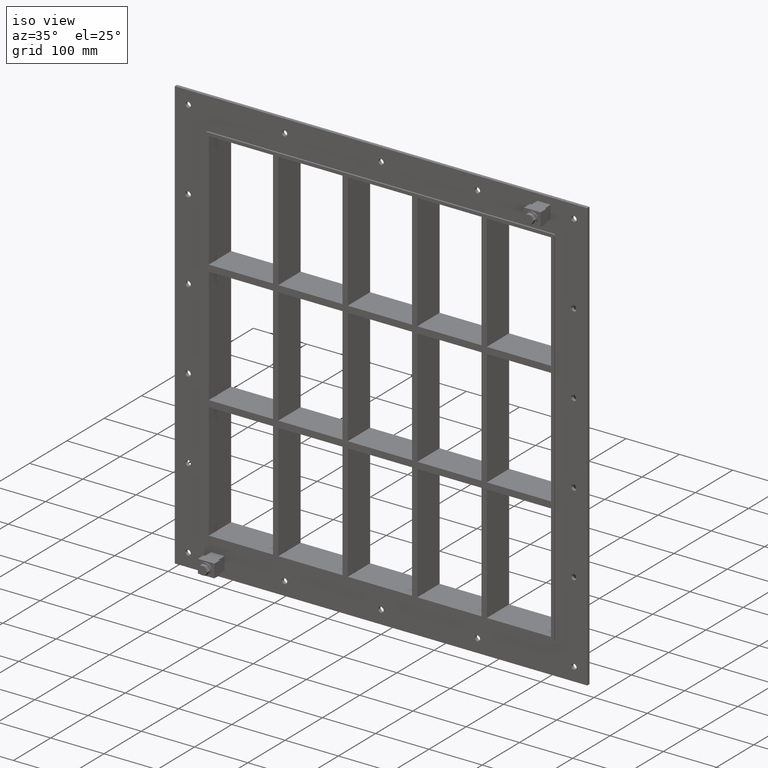
[diagram: clean part render]
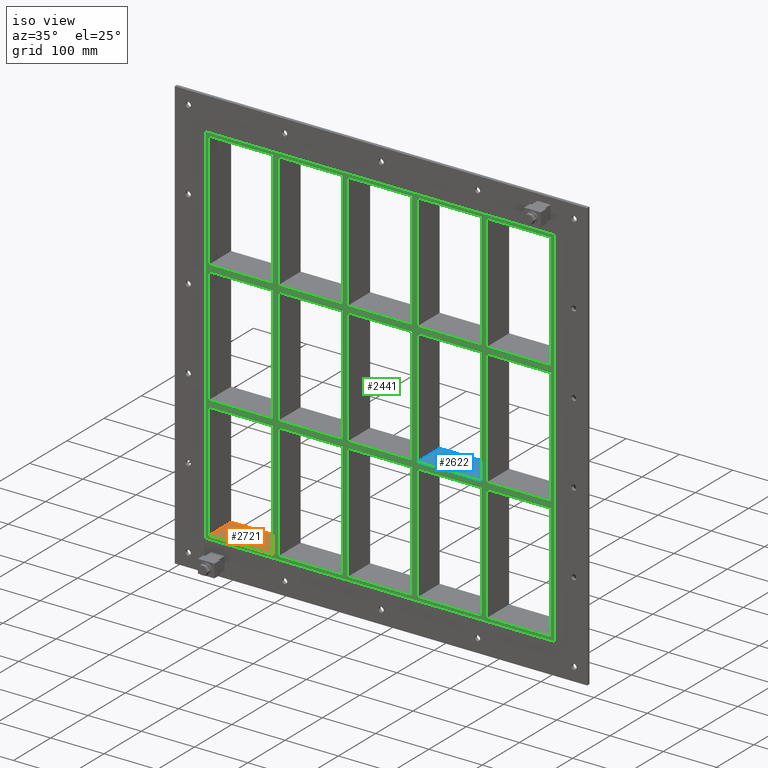
[diagram: same view with three faces highlighted in distinct colors, each labeled with its STEP entity id]
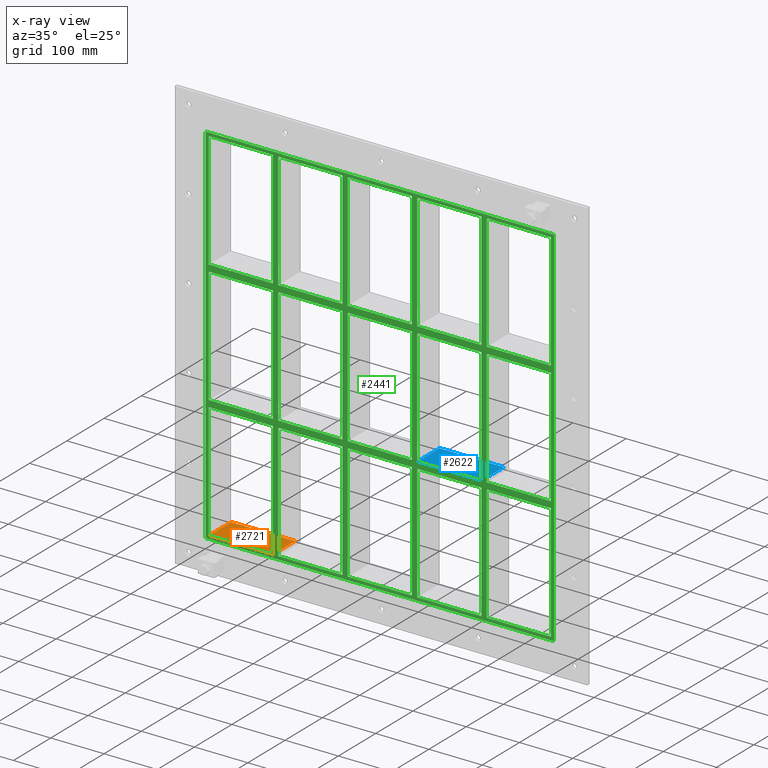
[diagram: x-ray of the same camera — body ghosted, the three highlighted faces saturated]
A machine part, iso view with three faces highlighted in distinct colors.
The next image is the same camera in x-ray (body ghosted, the three faces saturated) — at least one of them is partly hidden behind the body in this view.
Their STEP definitions:

[orange] entity #2721 — the highlighted planar face has unit normal (0, 0, -1).
#1558=CARTESIAN_POINT('',(-321.25,57.0,-339.00000000000006));
#1559=VERTEX_POINT('',#1558);
#1566=CARTESIAN_POINT('',(-200.75000000000017,57.0,-339.00000000000006));
#1567=VERTEX_POINT('',#1566);
#1568=CARTESIAN_POINT('',(-321.25,57.0,-339.00000000000006));
#1569=DIRECTION('',(1.0,0.0,0.0));
#1570=VECTOR('',#1569,120.49999999999983);
#1571=LINE('',#1568,#1570);
#1572=EDGE_CURVE('',#1559,#1567,#1571,.T.);
#2417=CARTESIAN_POINT('',(-200.75000000000017,-3.0,-339.00000000000006));
#2418=VERTEX_POINT('',#2417);
#2425=CARTESIAN_POINT('',(-321.25,-3.0,-339.00000000000006));
#2426=VERTEX_POINT('',#2425);
#2427=CARTESIAN_POINT('',(-200.75000000000017,-3.0,-339.00000000000006));
#2428=DIRECTION('',(-1.0,0.0,0.0));
#2429=VECTOR('',#2428,120.49999999999983);
#2430=LINE('',#2427,#2429);
#2431=EDGE_CURVE('',#2418,#2426,#2430,.T.);
#2683=CARTESIAN_POINT('',(-200.75000000000017,-3.0,-339.00000000000006));
#2684=DIRECTION('',(0.0,1.0,0.0));
#2685=VECTOR('',#2684,60.000000000000007);
#2686=LINE('',#2683,#2685);
#2687=EDGE_CURVE('',#2418,#1567,#2686,.T.);
#2705=CARTESIAN_POINT('',(321.25,0.0,-339.00000000000006));
#2706=DIRECTION('',(0.0,0.0,-1.0));
#2707=DIRECTION('',(-1.0,0.0,0.0));
#2708=AXIS2_PLACEMENT_3D('',#2705,#2706,#2707);
#2709=PLANE('',#2708);
#2710=ORIENTED_EDGE('',*,*,#2687,.T.);
#2711=ORIENTED_EDGE('',*,*,#1572,.F.);
#2712=CARTESIAN_POINT('',(-321.25,-3.0,-339.00000000000006));
#2713=DIRECTION('',(0.0,1.0,0.0));
#2714=VECTOR('',#2713,60.0);
#2715=LINE('',#2712,#2714);
#2716=EDGE_CURVE('',#2426,#1559,#2715,.T.);
#2717=ORIENTED_EDGE('',*,*,#2716,.F.);
#2718=ORIENTED_EDGE('',*,*,#2431,.F.);
#2719=EDGE_LOOP('',(#2710,#2711,#2717,#2718));
#2720=FACE_OUTER_BOUND('',#2719,.T.);
#2721=ADVANCED_FACE('',(#2720),#2709,.F.);

[blue] entity #2622 — the highlighted planar face has unit normal (0, 0, 1).
#1482=CARTESIAN_POINT('',(70.249999999992738,57.0,-108.99999999999977));
#1483=VERTEX_POINT('',#1482);
#1490=CARTESIAN_POINT('',(190.74999999999986,57.0,-108.99999999999977));
#1491=VERTEX_POINT('',#1490);
#1492=CARTESIAN_POINT('',(70.249999999992724,57.0,-108.99999999999977));
#1493=DIRECTION('',(1.0,0.0,0.0));
#1494=VECTOR('',#1493,120.50000000000716);
#1495=LINE('',#1492,#1494);
#1496=EDGE_CURVE('',#1483,#1491,#1495,.T.);
#1745=CARTESIAN_POINT('',(190.74999999999986,-3.0,-108.99999999999977));
#1746=VERTEX_POINT('',#1745);
#1747=CARTESIAN_POINT('',(190.74999999999983,-3.0,-108.99999999999977));
#1748=DIRECTION('',(0.0,1.0,0.0));
#1749=VECTOR('',#1748,60.0);
#1750=LINE('',#1747,#1749);
#1751=EDGE_CURVE('',#1746,#1491,#1750,.T.);
#1909=CARTESIAN_POINT('',(70.249999999992738,-3.0,-108.99999999999977));
#1910=VERTEX_POINT('',#1909);
#1917=CARTESIAN_POINT('',(70.249999999992738,57.0,-108.99999999999977));
#1918=DIRECTION('',(0.0,-1.0,0.0));
#1919=VECTOR('',#1918,60.0);
#1920=LINE('',#1917,#1919);
#1921=EDGE_CURVE('',#1483,#1910,#1920,.T.);
#2248=CARTESIAN_POINT('',(70.249999999992724,-3.0,-108.99999999999977));
#2249=DIRECTION('',(1.0,0.0,0.0));
#2250=VECTOR('',#2249,120.50000000000716);
#2251=LINE('',#2248,#2250);
#2252=EDGE_CURVE('',#1910,#1746,#2251,.T.);
#2611=CARTESIAN_POINT('',(-321.24999999999858,-3.0,-108.99999999999977));
#2612=DIRECTION('',(0.0,0.0,1.0));
#2613=DIRECTION('',(1.0,0.0,0.0));
#2614=AXIS2_PLACEMENT_3D('',#2611,#2612,#2613);
#2615=PLANE('',#2614);
#2616=ORIENTED_EDGE('',*,*,#1751,.T.);
#2617=ORIENTED_EDGE('',*,*,#1496,.F.);
#2618=ORIENTED_EDGE('',*,*,#1921,.T.);
#2619=ORIENTED_EDGE('',*,*,#2252,.T.);
#2620=EDGE_LOOP('',(#2616,#2617,#2618,#2619));
#2621=FACE_OUTER_BOUND('',#2620,.T.);
#2622=ADVANCED_FACE('',(#2621),#2615,.T.);

[green] entity #2441 — the highlighted planar face has unit normal (0, 1, 0).
#577=CARTESIAN_POINT('',(-200.75000000000023,-3.0,108.99999999998855));
#578=VERTEX_POINT('',#577);
#587=CARTESIAN_POINT('',(-321.24999999999858,-3.0,108.9999999999884));
#588=VERTEX_POINT('',#587);
#589=CARTESIAN_POINT('',(-200.75000000000023,-3.0,108.99999999998852));
#590=DIRECTION('',(-1.0,0.0,0.0));
#591=VECTOR('',#590,120.49999999999841);
#592=LINE('',#589,#591);
#593=EDGE_CURVE('',#578,#588,#592,.T.);
#617=CARTESIAN_POINT('',(-70.25000000000027,-3.0,108.99999999998866));
#618=VERTEX_POINT('',#617);
#627=CARTESIAN_POINT('',(-190.75000000000728,-3.0,108.99999999998855));
#628=VERTEX_POINT('',#627);
#629=CARTESIAN_POINT('',(-70.250000000000284,-3.0,108.99999999998865));
#630=DIRECTION('',(-1.0,0.0,0.0));
#631=VECTOR('',#630,120.50000000000699);
#632=LINE('',#629,#631);
#633=EDGE_CURVE('',#618,#628,#632,.T.);
#657=CARTESIAN_POINT('',(60.249999999999773,-3.0,108.99999999998877));
#658=VERTEX_POINT('',#657);
#667=CARTESIAN_POINT('',(-60.250000000007304,-3.0,108.99999999998866));
#668=VERTEX_POINT('',#667);
#669=CARTESIAN_POINT('',(60.249999999999773,-3.0,108.99999999998877));
#670=DIRECTION('',(-1.0,0.0,0.0));
#671=VECTOR('',#670,120.50000000000705);
#672=LINE('',#669,#671);
#673=EDGE_CURVE('',#658,#668,#672,.T.);
#699=CARTESIAN_POINT('',(200.74999999999278,-3.0,108.9999999999889));
#700=VERTEX_POINT('',#699);
#715=CARTESIAN_POINT('',(321.25,-3.0,108.99999999998903));
#716=VERTEX_POINT('',#715);
#723=CARTESIAN_POINT('',(321.25,-3.0,108.99999999998903));
#724=DIRECTION('',(-1.0,0.0,0.0));
#725=VECTOR('',#724,120.50000000000722);
#726=LINE('',#723,#725);
#727=EDGE_CURVE('',#716,#700,#726,.T.);
#737=CARTESIAN_POINT('',(190.74999999999983,-3.0,108.9999999999889));
#738=VERTEX_POINT('',#737);
#747=CARTESIAN_POINT('',(70.249999999992738,-3.0,108.99999999998877));
#748=VERTEX_POINT('',#747);
#749=CARTESIAN_POINT('',(190.74999999999983,-3.0,108.9999999999889));
#750=DIRECTION('',(-1.0,0.0,0.0));
#751=VECTOR('',#750,120.50000000000711);
#752=LINE('',#749,#751);
#753=EDGE_CURVE('',#738,#748,#752,.T.);
#779=CARTESIAN_POINT('',(-200.75000000000023,-3.0,121.00000000000023));
#780=VERTEX_POINT('',#779);
#795=CARTESIAN_POINT('',(-321.24999999999858,-3.0,121.00000000000023));
#796=VERTEX_POINT('',#795);
#803=CARTESIAN_POINT('',(-321.24999999999858,-3.0,121.00000000000023));
#804=DIRECTION('',(1.0,0.0,0.0));
#805=VECTOR('',#804,120.49999999999835);
#806=LINE('',#803,#805);
#807=EDGE_CURVE('',#796,#780,#806,.T.);
#817=CARTESIAN_POINT('',(200.74999999999278,-3.0,121.00000000000023));
#818=VERTEX_POINT('',#817);
#827=CARTESIAN_POINT('',(321.24999999999955,-3.0,121.00000000000023));
#828=VERTEX_POINT('',#827);
#829=CARTESIAN_POINT('',(200.74999999999278,-3.0,121.00000000000023));
#830=DIRECTION('',(1.0,0.0,0.0));
#831=VECTOR('',#830,120.50000000000682);
#832=LINE('',#829,#831);
#833=EDGE_CURVE('',#818,#828,#832,.T.);
#859=CARTESIAN_POINT('',(-70.250000000000227,-3.0,121.00000000000023));
#860=VERTEX_POINT('',#859);
#875=CARTESIAN_POINT('',(-190.75000000000728,-3.0,121.00000000000023));
#876=VERTEX_POINT('',#875);
#883=CARTESIAN_POINT('',(-190.75000000000728,-3.0,121.00000000000023));
#884=DIRECTION('',(1.0,0.0,0.0));
#885=VECTOR('',#884,120.50000000000705);
#886=LINE('',#883,#885);
#887=EDGE_CURVE('',#876,#860,#886,.T.);
#899=CARTESIAN_POINT('',(60.249999999999773,-3.0,121.00000000000023));
#900=VERTEX_POINT('',#899);
#915=CARTESIAN_POINT('',(-60.250000000007269,-3.0,121.00000000000023));
#916=VERTEX_POINT('',#915);
#923=CARTESIAN_POINT('',(-60.250000000007276,-3.0,121.00000000000023));
#924=DIRECTION('',(1.0,0.0,0.0));
#925=VECTOR('',#924,120.50000000000705);
#926=LINE('',#923,#925);
#927=EDGE_CURVE('',#916,#900,#926,.T.);
#939=CARTESIAN_POINT('',(190.74999999999983,-3.0,121.00000000000023));
#940=VERTEX_POINT('',#939);
#955=CARTESIAN_POINT('',(70.249999999992738,-3.0,121.00000000000023));
#956=VERTEX_POINT('',#955);
#963=CARTESIAN_POINT('',(70.249999999992724,-3.0,121.00000000000023));
#964=DIRECTION('',(1.0,0.0,0.0));
#965=VECTOR('',#964,120.50000000000711);
#966=LINE('',#963,#965);
#967=EDGE_CURVE('',#956,#940,#966,.T.);
#986=CARTESIAN_POINT('',(-321.25,-3.0,339.00000000000006));
#987=VERTEX_POINT('',#986);
#994=CARTESIAN_POINT('',(-321.25,-3.0,121.00000000000023));
#995=DIRECTION('',(0.0,0.0,1.0));
#996=VECTOR('',#995,217.99999999999989);
#997=LINE('',#994,#996);
#998=EDGE_CURVE('',#796,#987,#997,.T.);
#1017=CARTESIAN_POINT('',(321.24999999999955,-3.0,-108.99999999999977));
#1018=VERTEX_POINT('',#1017);
#1025=CARTESIAN_POINT('',(321.25,-3.0,108.99999999998902));
#1026=DIRECTION('',(0.0,0.0,-1.0));
#1027=VECTOR('',#1026,217.9999999999888);
#1028=LINE('',#1025,#1027);
#1029=EDGE_CURVE('',#716,#1018,#1028,.T.);
#1040=CARTESIAN_POINT('',(321.25,-3.0,339.00000000000006));
#1041=VERTEX_POINT('',#1040);
#1042=CARTESIAN_POINT('',(321.25,-3.0,339.00000000000006));
#1043=DIRECTION('',(0.0,0.0,-1.0));
#1044=VECTOR('',#1043,217.99999999999983);
#1045=LINE('',#1042,#1044);
#1046=EDGE_CURVE('',#1041,#828,#1045,.T.);
#1071=CARTESIAN_POINT('',(190.74999999999977,-3.0,339.00000000000006));
#1072=VERTEX_POINT('',#1071);
#1073=CARTESIAN_POINT('',(190.7499999999998,-3.0,121.00000000000023));
#1074=DIRECTION('',(0.0,0.0,1.0));
#1075=VECTOR('',#1074,217.99999999999983);
#1076=LINE('',#1073,#1075);
#1077=EDGE_CURVE('',#940,#1072,#1076,.T.);
#1110=CARTESIAN_POINT('',(200.74999999999278,-3.0,339.00000000000006));
#1111=VERTEX_POINT('',#1110);
#1118=CARTESIAN_POINT('',(200.74999999999278,-3.0,339.00000000000006));
#1119=DIRECTION('',(0.0,0.0,-1.0));
#1120=VECTOR('',#1119,217.99999999999983);
#1121=LINE('',#1118,#1120);
#1122=EDGE_CURVE('',#1111,#818,#1121,.T.);
#1133=CARTESIAN_POINT('',(60.249999999999737,-3.0,339.00000000000006));
#1134=VERTEX_POINT('',#1133);
#1135=CARTESIAN_POINT('',(60.249999999999773,-3.0,121.00000000000023));
#1136=DIRECTION('',(0.0,0.0,1.0));
#1137=VECTOR('',#1136,217.99999999999983);
#1138=LINE('',#1135,#1137);
#1139=EDGE_CURVE('',#900,#1134,#1138,.T.);
#1172=CARTESIAN_POINT('',(70.249999999992738,-3.0,339.00000000000006));
#1173=VERTEX_POINT('',#1172);
#1180=CARTESIAN_POINT('',(70.249999999992738,-3.0,339.00000000000006));
#1181=DIRECTION('',(0.0,0.0,-1.0));
#1182=VECTOR('',#1181,217.99999999999983);
#1183=LINE('',#1180,#1182);
#1184=EDGE_CURVE('',#1173,#956,#1183,.T.);
#1195=CARTESIAN_POINT('',(-70.25000000000027,-3.0,339.00000000000006));
#1196=VERTEX_POINT('',#1195);
#1197=CARTESIAN_POINT('',(-70.250000000000242,-3.0,121.00000000000023));
#1198=DIRECTION('',(0.0,0.0,1.0));
#1199=VECTOR('',#1198,217.99999999999983);
#1200=LINE('',#1197,#1199);
#1201=EDGE_CURVE('',#860,#1196,#1200,.T.);
#1234=CARTESIAN_POINT('',(-60.250000000007269,-3.0,339.00000000000006));
#1235=VERTEX_POINT('',#1234);
#1242=CARTESIAN_POINT('',(-60.250000000007269,-3.0,339.00000000000006));
#1243=DIRECTION('',(0.0,0.0,-1.0));
#1244=VECTOR('',#1243,217.99999999999983);
#1245=LINE('',#1242,#1244);
#1246=EDGE_CURVE('',#1235,#916,#1245,.T.);
#1257=CARTESIAN_POINT('',(-200.75000000000028,-3.0,339.00000000000006));
#1258=VERTEX_POINT('',#1257);
#1259=CARTESIAN_POINT('',(-200.75000000000026,-3.0,121.00000000000023));
#1260=DIRECTION('',(0.0,0.0,1.0));
#1261=VECTOR('',#1260,217.99999999999983);
#1262=LINE('',#1259,#1261);
#1263=EDGE_CURVE('',#780,#1258,#1262,.T.);
#1296=CARTESIAN_POINT('',(-200.7500000000002,-3.0,-108.99999999999977));
#1297=VERTEX_POINT('',#1296);
#1304=CARTESIAN_POINT('',(-200.7500000000002,-3.0,-108.99999999999977));
#1305=DIRECTION('',(0.0,0.0,1.0));
#1306=VECTOR('',#1305,217.99999999998835);
#1307=LINE('',#1304,#1306);
#1308=EDGE_CURVE('',#1297,#578,#1307,.T.);
#1327=CARTESIAN_POINT('',(-190.75000000000728,-3.0,339.00000000000006));
#1328=VERTEX_POINT('',#1327);
#1335=CARTESIAN_POINT('',(-190.75000000000728,-3.0,339.00000000000006));
#1336=DIRECTION('',(0.0,0.0,-1.0));
#1337=VECTOR('',#1336,217.99999999999983);
#1338=LINE('',#1335,#1337);
#1339=EDGE_CURVE('',#1328,#876,#1338,.T.);
#1745=CARTESIAN_POINT('',(190.74999999999986,-3.0,-108.99999999999977));
#1746=VERTEX_POINT('',#1745);
#1753=CARTESIAN_POINT('',(190.74999999999986,-3.0,-108.99999999999977));
#1754=DIRECTION('',(0.0,0.0,1.0));
#1755=VECTOR('',#1754,217.99999999998869);
#1756=LINE('',#1753,#1755);
#1757=EDGE_CURVE('',#1746,#738,#1756,.T.);
#1767=CARTESIAN_POINT('',(190.74999999999986,-3.0,-121.0000000000111));
#1768=VERTEX_POINT('',#1767);
#1776=CARTESIAN_POINT('',(190.74999999999989,-3.0,-339.00000000000006));
#1777=VERTEX_POINT('',#1776);
#1784=CARTESIAN_POINT('',(190.74999999999989,-3.0,-339.00000000000006));
#1785=DIRECTION('',(0.0,0.0,1.0));
#1786=VECTOR('',#1785,217.99999999998897);
#1787=LINE('',#1784,#1786);
#1788=EDGE_CURVE('',#1777,#1768,#1787,.T.);
#1799=CARTESIAN_POINT('',(200.74999999999278,-3.0,-108.99999999999977));
#1800=VERTEX_POINT('',#1799);
#1801=CARTESIAN_POINT('',(200.74999999999278,-3.0,108.99999999998892));
#1802=DIRECTION('',(0.0,0.0,-1.0));
#1803=VECTOR('',#1802,217.99999999998869);
#1804=LINE('',#1801,#1803);
#1805=EDGE_CURVE('',#700,#1800,#1804,.T.);
#1822=CARTESIAN_POINT('',(200.74999999999278,-3.0,-121.0000000000111));
#1823=VERTEX_POINT('',#1822);
#1830=CARTESIAN_POINT('',(200.74999999999278,-3.0,-338.99999999998187));
#1831=VERTEX_POINT('',#1830);
#1832=CARTESIAN_POINT('',(200.74999999999278,-3.0,-121.00000000001108));
#1833=DIRECTION('',(0.0,0.0,-1.0));
#1834=VECTOR('',#1833,217.99999999997078);
#1835=LINE('',#1832,#1834);
#1836=EDGE_CURVE('',#1823,#1831,#1835,.T.);
#1855=CARTESIAN_POINT('',(60.249999999999808,-3.0,-108.99999999999977));
#1856=VERTEX_POINT('',#1855);
#1863=CARTESIAN_POINT('',(60.249999999999808,-3.0,-108.99999999999977));
#1864=DIRECTION('',(0.0,0.0,1.0));
#1865=VECTOR('',#1864,217.99999999998852);
#1866=LINE('',#1863,#1865);
#1867=EDGE_CURVE('',#1856,#658,#1866,.T.);
#1877=CARTESIAN_POINT('',(60.249999999999808,-3.0,-121.0000000000112));
#1878=VERTEX_POINT('',#1877);
#1886=CARTESIAN_POINT('',(60.249999999999844,-3.0,-339.00000000000006));
#1887=VERTEX_POINT('',#1886);
#1894=CARTESIAN_POINT('',(60.249999999999844,-3.0,-339.00000000000006));
#1895=DIRECTION('',(0.0,0.0,1.0));
#1896=VECTOR('',#1895,217.99999999998886);
#1897=LINE('',#1894,#1896);
#1898=EDGE_CURVE('',#1887,#1878,#1897,.T.);
#1909=CARTESIAN_POINT('',(70.249999999992738,-3.0,-108.99999999999977));
#1910=VERTEX_POINT('',#1909);
#1911=CARTESIAN_POINT('',(70.249999999992738,-3.0,108.99999999998875));
#1912=DIRECTION('',(0.0,0.0,-1.0));
#1913=VECTOR('',#1912,217.99999999998852);
#1914=LINE('',#1911,#1913);
#1915=EDGE_CURVE('',#748,#1910,#1914,.T.);
#1932=CARTESIAN_POINT('',(70.249999999992738,-3.0,-121.00000000001117));
#1933=VERTEX_POINT('',#1932);
#1940=CARTESIAN_POINT('',(70.249999999992738,-3.0,-338.99999999998187));
#1941=VERTEX_POINT('',#1940);
#1942=CARTESIAN_POINT('',(70.249999999992738,-3.0,-121.0000000000112));
#1943=DIRECTION('',(0.0,0.0,-1.0));
#1944=VECTOR('',#1943,217.99999999997067);
#1945=LINE('',#1942,#1944);
#1946=EDGE_CURVE('',#1933,#1941,#1945,.T.);
#1965=CARTESIAN_POINT('',(-70.250000000000199,-3.0,-108.99999999999977));
#1966=VERTEX_POINT('',#1965);
#1973=CARTESIAN_POINT('',(-70.250000000000213,-3.0,-108.99999999999977));
#1974=DIRECTION('',(0.0,0.0,1.0));
#1975=VECTOR('',#1974,217.99999999998846);
#1976=LINE('',#1973,#1975);
#1977=EDGE_CURVE('',#1966,#618,#1976,.T.);
#1987=CARTESIAN_POINT('',(-70.250000000000199,-3.0,-121.00000000001134));
#1988=VERTEX_POINT('',#1987);
#1996=CARTESIAN_POINT('',(-70.250000000000171,-3.0,-339.00000000000006));
#1997=VERTEX_POINT('',#1996);
#2004=CARTESIAN_POINT('',(-70.250000000000171,-3.0,-339.00000000000006));
#2005=DIRECTION('',(0.0,0.0,1.0));
#2006=VECTOR('',#2005,217.99999999998872);
#2007=LINE('',#2004,#2006);
#2008=EDGE_CURVE('',#1997,#1988,#2007,.T.);
#2019=CARTESIAN_POINT('',(-60.250000000007269,-3.0,-108.99999999999977));
#2020=VERTEX_POINT('',#2019);
#2021=CARTESIAN_POINT('',(-60.250000000007269,-3.0,108.99999999998866));
#2022=DIRECTION('',(0.0,0.0,-1.0));
#2023=VECTOR('',#2022,217.99999999998843);
#2024=LINE('',#2021,#2023);
#2025=EDGE_CURVE('',#668,#2020,#2024,.T.);
#2042=CARTESIAN_POINT('',(-60.250000000007269,-3.0,-121.00000000001131));
#2043=VERTEX_POINT('',#2042);
#2050=CARTESIAN_POINT('',(-60.250000000007269,-3.0,-338.99999999998187));
#2051=VERTEX_POINT('',#2050);
#2052=CARTESIAN_POINT('',(-60.250000000007269,-3.0,-121.00000000001131));
#2053=DIRECTION('',(0.0,0.0,-1.0));
#2054=VECTOR('',#2053,217.99999999997056);
#2055=LINE('',#2052,#2054);
#2056=EDGE_CURVE('',#2043,#2051,#2055,.T.);
#2075=CARTESIAN_POINT('',(-190.75000000000728,-3.0,-338.99999999998187));
#2076=VERTEX_POINT('',#2075);
#2083=CARTESIAN_POINT('',(-70.250000000000171,-3.0,-339.00000000000006));
#2084=DIRECTION('',(-1.0,0.0,0.0));
#2085=VECTOR('',#2084,120.50000000000711);
#2086=LINE('',#2083,#2085);
#2087=EDGE_CURVE('',#1997,#2076,#2086,.T.);
#2100=CARTESIAN_POINT('',(60.249999999999844,-3.0,-339.00000000000006));
#2101=DIRECTION('',(-1.0,0.0,0.0));
#2102=VECTOR('',#2101,120.50000000000712);
#2103=LINE('',#2100,#2102);
#2104=EDGE_CURVE('',#1887,#2051,#2103,.T.);
#2117=CARTESIAN_POINT('',(190.74999999999989,-3.0,-339.00000000000006));
#2118=DIRECTION('',(-1.0,0.0,0.0));
#2119=VECTOR('',#2118,120.50000000000715);
#2120=LINE('',#2117,#2119);
#2121=EDGE_CURVE('',#1777,#1941,#2120,.T.);
#2132=CARTESIAN_POINT('',(321.25,-3.0,-339.00000000000006));
#2133=VERTEX_POINT('',#2132);
#2134=CARTESIAN_POINT('',(321.25,-3.0,-339.00000000000006));
#2135=DIRECTION('',(-1.0,0.0,0.0));
#2136=VECTOR('',#2135,120.50000000000722);
#2137=LINE('',#2134,#2136);
#2138=EDGE_CURVE('',#2133,#1831,#2137,.T.);
#2150=CARTESIAN_POINT('',(0.0,-3.0,5.073418E-014));
#2151=DIRECTION('',(0.0,1.0,0.0));
#2152=DIRECTION('',(0.0,0.0,1.0));
#2153=AXIS2_PLACEMENT_3D('',#2150,#2151,#2152);
#2154=PLANE('',#2153);
#2155=CARTESIAN_POINT('',(-325.25,-3.0,-345.0));
#2156=VERTEX_POINT('',#2155);
#2157=CARTESIAN_POINT('',(-327.25,-3.0,-343.0));
#2158=VERTEX_POINT('',#2157);
#2159=CARTESIAN_POINT('',(-325.25,-3.0,-343.0));
#2160=DIRECTION('',(0.0,1.0,0.0));
#2161=DIRECTION('',(-0.707106781186548,0.0,-0.707106781186548));
#2162=AXIS2_PLACEMENT_3D('',#2159,#2160,#2161);
#2163=CIRCLE('',#2162,2.0);
#2164=EDGE_CURVE('',#2156,#2158,#2163,.T.);
#2165=ORIENTED_EDGE('',*,*,#2164,.F.);
#2166=CARTESIAN_POINT('',(325.25,-3.0,-345.0));
#2167=VERTEX_POINT('',#2166);
#2168=CARTESIAN_POINT('',(-325.25,-3.0,-345.0));
#2169=DIRECTION('',(1.0,0.0,0.0));
#2170=VECTOR('',#2169,650.5);
#2171=LINE('',#2168,#2170);
#2172=EDGE_CURVE('',#2156,#2167,#2171,.T.);
#2173=ORIENTED_EDGE('',*,*,#2172,.T.);
#2174=CARTESIAN_POINT('',(327.25,-3.0,-343.0));
#2175=VERTEX_POINT('',#2174);
#2176=CARTESIAN_POINT('',(325.25,-3.0,-343.0));
#2177=DIRECTION('',(0.0,1.0,0.0));
#2178=DIRECTION('',(0.707106781186548,0.0,-0.707106781186548));
#2179=AXIS2_PLACEMENT_3D('',#2176,#2177,#2178);
#2180=CIRCLE('',#2179,2.0);
#2181=EDGE_CURVE('',#2175,#2167,#2180,.T.);
#2182=ORIENTED_EDGE('',*,*,#2181,.F.);
#2183=CARTESIAN_POINT('',(327.25,-3.0,343.00000000000011));
#2184=VERTEX_POINT('',#2183);
#2185=CARTESIAN_POINT('',(327.25,-3.0,-343.0));
#2186=DIRECTION('',(0.0,0.0,1.0));
#2187=VECTOR('',#2186,686.00000000000011);
#2188=LINE('',#2185,#2187);
#2189=EDGE_CURVE('',#2175,#2184,#2188,.T.);
#2190=ORIENTED_EDGE('',*,*,#2189,.T.);
#2191=CARTESIAN_POINT('',(325.25,-3.0,345.00000000000011));
#2192=VERTEX_POINT('',#2191);
#2193=CARTESIAN_POINT('',(325.25,-3.0,343.00000000000011));
#2194=DIRECTION('',(0.0,1.0,0.0));
#2195=DIRECTION('',(0.707106781186548,0.0,0.707106781186548));
#2196=AXIS2_PLACEMENT_3D('',#2193,#2194,#2195);
#2197=CIRCLE('',#2196,2.0);
#2198=EDGE_CURVE('',#2192,#2184,#2197,.T.);
#2199=ORIENTED_EDGE('',*,*,#2198,.F.);
#2200=CARTESIAN_POINT('',(-325.25,-3.0,345.00000000000011));
#2201=VERTEX_POINT('',#2200);
#2202=CARTESIAN_POINT('',(325.25,-3.0,345.00000000000011));
#2203=DIRECTION('',(-1.0,0.0,0.0));
#2204=VECTOR('',#2203,650.5);
#2205=LINE('',#2202,#2204);
#2206=EDGE_CURVE('',#2192,#2201,#2205,.T.);
#2207=ORIENTED_EDGE('',*,*,#2206,.T.);
#2208=CARTESIAN_POINT('',(-327.25,-3.0,343.00000000000011));
#2209=VERTEX_POINT('',#2208);
#2210=CARTESIAN_POINT('',(-325.25,-3.0,343.00000000000011));
#2211=DIRECTION('',(0.0,1.0,0.0));
#2212=DIRECTION('',(-0.707106781186548,0.0,0.707106781186548));
#2213=AXIS2_PLACEMENT_3D('',#2210,#2211,#2212);
#2214=CIRCLE('',#2213,2.0);
#2215=EDGE_CURVE('',#2209,#2201,#2214,.T.);
#2216=ORIENTED_EDGE('',*,*,#2215,.F.);
#2217=CARTESIAN_POINT('',(-327.25,-3.0,343.00000000000011));
#2218=DIRECTION('',(0.0,0.0,-1.0));
#2219=VECTOR('',#2218,686.00000000000011);
#2220=LINE('',#2217,#2219);
#2221=EDGE_CURVE('',#2209,#2158,#2220,.T.);
#2222=ORIENTED_EDGE('',*,*,#2221,.T.);
#2223=EDGE_LOOP('',(#2165,#2173,#2182,#2190,#2199,#2207,#2216,#2222));
#2224=FACE_OUTER_BOUND('',#2223,.T.);
#2225=ORIENTED_EDGE('',*,*,#998,.T.);
#2226=CARTESIAN_POINT('',(-321.25,-3.0,339.00000000000006));
#2227=DIRECTION('',(1.0,0.0,0.0));
#2228=VECTOR('',#2227,120.49999999999972);
#2229=LINE('',#2226,#2228);
#2230=EDGE_CURVE('',#987,#1258,#2229,.T.);
#2231=ORIENTED_EDGE('',*,*,#2230,.T.);
#2232=ORIENTED_EDGE('',*,*,#1263,.F.);
#2233=ORIENTED_EDGE('',*,*,#807,.F.);
#2234=EDGE_LOOP('',(#2225,#2231,#2232,#2233));
#2235=FACE_BOUND('',#2234,.T.);
#2236=ORIENTED_EDGE('',*,*,#1029,.T.);
#2237=CARTESIAN_POINT('',(200.74999999999278,-3.0,-108.99999999999977));
#2238=DIRECTION('',(1.0,0.0,0.0));
#2239=VECTOR('',#2238,120.50000000000682);
#2240=LINE('',#2237,#2239);
#2241=EDGE_CURVE('',#1800,#1018,#2240,.T.);
#2242=ORIENTED_EDGE('',*,*,#2241,.F.);
#2243=ORIENTED_EDGE('',*,*,#1805,.F.);
#2244=ORIENTED_EDGE('',*,*,#727,.F.);
#2245=EDGE_LOOP('',(#2236,#2242,#2243,#2244));
#2246=FACE_BOUND('',#2245,.T.);
#2247=ORIENTED_EDGE('',*,*,#1757,.F.);
#2248=CARTESIAN_POINT('',(70.249999999992724,-3.0,-108.99999999999977));
#2249=DIRECTION('',(1.0,0.0,0.0));
#2250=VECTOR('',#2249,120.50000000000716);
#2251=LINE('',#2248,#2250);
#2252=EDGE_CURVE('',#1910,#1746,#2251,.T.);
#2253=ORIENTED_EDGE('',*,*,#2252,.F.);
#2254=ORIENTED_EDGE('',*,*,#1915,.F.);
#2255=ORIENTED_EDGE('',*,*,#753,.F.);
#2256=EDGE_LOOP('',(#2247,#2253,#2254,#2255));
#2257=FACE_BOUND('',#2256,.T.);
#2258=ORIENTED_EDGE('',*,*,#1867,.F.);
#2259=CARTESIAN_POINT('',(-60.250000000007276,-3.0,-108.99999999999977));
#2260=DIRECTION('',(1.0,0.0,0.0));
#2261=VECTOR('',#2260,120.50000000000705);
#2262=LINE('',#2259,#2261);
#2263=EDGE_CURVE('',#2020,#1856,#2262,.T.);
#2264=ORIENTED_EDGE('',*,*,#2263,.F.);
#2265=ORIENTED_EDGE('',*,*,#2025,.F.);
#2266=ORIENTED_EDGE('',*,*,#673,.F.);
#2267=EDGE_LOOP('',(#2258,#2264,#2265,#2266));
#2268=FACE_BOUND('',#2267,.T.);
#2269=ORIENTED_EDGE('',*,*,#1977,.F.);
#2270=CARTESIAN_POINT('',(-190.75000000000728,-3.0,-108.99999999999977));
#2271=VERTEX_POINT('',#2270);
#2272=CARTESIAN_POINT('',(-190.75000000000728,-3.0,-108.99999999999977));
#2273=DIRECTION('',(1.0,0.0,0.0));
#2274=VECTOR('',#2273,120.50000000000708);
#2275=LINE('',#2272,#2274);
#2276=EDGE_CURVE('',#2271,#1966,#2275,.T.);
#2277=ORIENTED_EDGE('',*,*,#2276,.F.);
#2278=CARTESIAN_POINT('',(-190.75000000000728,-3.0,108.99999999998855));
#2279=DIRECTION('',(0.0,0.0,-1.0));
#2280=VECTOR('',#2279,217.99999999998832);
#2281=LINE('',#2278,#2280);
#2282=EDGE_CURVE('',#628,#2271,#2281,.T.);
#2283=ORIENTED_EDGE('',*,*,#2282,.F.);
#2284=ORIENTED_EDGE('',*,*,#633,.F.);
#2285=EDGE_LOOP('',(#2269,#2277,#2283,#2284));
#2286=FACE_BOUND('',#2285,.T.);
#2287=ORIENTED_EDGE('',*,*,#967,.F.);
#2288=ORIENTED_EDGE('',*,*,#1184,.F.);
#2289=CARTESIAN_POINT('',(70.249999999992724,-3.0,339.00000000000006));
#2290=DIRECTION('',(1.0,0.0,0.0));
#2291=VECTOR('',#2290,120.50000000000705);
#2292=LINE('',#2289,#2291);
#2293=EDGE_CURVE('',#1173,#1072,#2292,.T.);
#2294=ORIENTED_EDGE('',*,*,#2293,.T.);
#2295=ORIENTED_EDGE('',*,*,#1077,.F.);
#2296=EDGE_LOOP('',(#2287,#2288,#2294,#2295));
#2297=FACE_BOUND('',#2296,.T.);
#2298=ORIENTED_EDGE('',*,*,#927,.F.);
#2299=ORIENTED_EDGE('',*,*,#1246,.F.);
#2300=CARTESIAN_POINT('',(-60.250000000007276,-3.0,339.00000000000006));
#2301=DIRECTION('',(1.0,0.0,0.0));
#2302=VECTOR('',#2301,120.50000000000702);
#2303=LINE('',#2300,#2302);
#2304=EDGE_CURVE('',#1235,#1134,#2303,.T.);
#2305=ORIENTED_EDGE('',*,*,#2304,.T.);
#2306=ORIENTED_EDGE('',*,*,#1139,.F.);
#2307=EDGE_LOOP('',(#2298,#2299,#2305,#2306));
#2308=FACE_BOUND('',#2307,.T.);
#2309=ORIENTED_EDGE('',*,*,#887,.F.);
#2310=ORIENTED_EDGE('',*,*,#1339,.F.);
#2311=CARTESIAN_POINT('',(-190.75000000000728,-3.0,339.00000000000006));
#2312=DIRECTION('',(1.0,0.0,0.0));
#2313=VECTOR('',#2312,120.50000000000701);
#2314=LINE('',#2311,#2313);
#2315=EDGE_CURVE('',#1328,#1196,#2314,.T.);
#2316=ORIENTED_EDGE('',*,*,#2315,.T.);
#2317=ORIENTED_EDGE('',*,*,#1201,.F.);
#2318=EDGE_LOOP('',(#2309,#2310,#2316,#2317));
#2319=FACE_BOUND('',#2318,.T.);
#2320=ORIENTED_EDGE('',*,*,#593,.F.);
#2321=ORIENTED_EDGE('',*,*,#1308,.F.);
#2322=CARTESIAN_POINT('',(-321.24999999999858,-3.0,-108.99999999999977));
#2323=VERTEX_POINT('',#2322);
#2324=CARTESIAN_POINT('',(-321.24999999999858,-3.0,-108.99999999999977));
#2325=DIRECTION('',(1.0,0.0,0.0));
#2326=VECTOR('',#2325,120.49999999999838);
#2327=LINE('',#2324,#2326);
#2328=EDGE_CURVE('',#2323,#1297,#2327,.T.);
#2329=ORIENTED_EDGE('',*,*,#2328,.F.);
#2330=CARTESIAN_POINT('',(-321.25,-3.0,-108.99999999999977));
#2331=DIRECTION('',(0.0,0.0,1.0));
#2332=VECTOR('',#2331,217.99999999998818);
#2333=LINE('',#2330,#2332);
#2334=EDGE_CURVE('',#2323,#588,#2333,.T.);
#2335=ORIENTED_EDGE('',*,*,#2334,.T.);
#2336=EDGE_LOOP('',(#2320,#2321,#2329,#2335));
#2337=FACE_BOUND('',#2336,.T.);
#2338=ORIENTED_EDGE('',*,*,#833,.F.);
#2339=ORIENTED_EDGE('',*,*,#1122,.F.);
#2340=CARTESIAN_POINT('',(200.74999999999278,-3.0,339.00000000000006));
#2341=DIRECTION('',(1.0,0.0,0.0));
#2342=VECTOR('',#2341,120.50000000000722);
#2343=LINE('',#2340,#2342);
#2344=EDGE_CURVE('',#1111,#1041,#2343,.T.);
#2345=ORIENTED_EDGE('',*,*,#2344,.T.);
#2346=ORIENTED_EDGE('',*,*,#1046,.T.);
#2347=EDGE_LOOP('',(#2338,#2339,#2345,#2346));
#2348=FACE_BOUND('',#2347,.T.);
#2349=ORIENTED_EDGE('',*,*,#2121,.T.);
#2350=ORIENTED_EDGE('',*,*,#1946,.F.);
#2351=CARTESIAN_POINT('',(190.74999999999986,-3.0,-121.0000000000111));
#2352=DIRECTION('',(-1.0,0.0,0.0));
#2353=VECTOR('',#2352,120.50000000000713);
#2354=LINE('',#2351,#2353);
#2355=EDGE_CURVE('',#1768,#1933,#2354,.T.);
#2356=ORIENTED_EDGE('',*,*,#2355,.F.);
#2357=ORIENTED_EDGE('',*,*,#1788,.F.);
#2358=EDGE_LOOP('',(#2349,#2350,#2356,#2357));
#2359=FACE_BOUND('',#2358,.T.);
#2360=ORIENTED_EDGE('',*,*,#2104,.T.);
#2361=ORIENTED_EDGE('',*,*,#2056,.F.);
#2362=CARTESIAN_POINT('',(60.249999999999829,-3.0,-121.00000000001123));
#2363=DIRECTION('',(-1.0,0.0,0.0));
#2364=VECTOR('',#2363,120.50000000000711);
#2365=LINE('',#2362,#2364);
#2366=EDGE_CURVE('',#1878,#2043,#2365,.T.);
#2367=ORIENTED_EDGE('',*,*,#2366,.F.);
#2368=ORIENTED_EDGE('',*,*,#1898,.F.);
#2369=EDGE_LOOP('',(#2360,#2361,#2367,#2368));
#2370=FACE_BOUND('',#2369,.T.);
#2371=ORIENTED_EDGE('',*,*,#2087,.T.);
#2372=CARTESIAN_POINT('',(-190.75000000000728,-3.0,-121.00000000001147));
#2373=VERTEX_POINT('',#2372);
#2374=CARTESIAN_POINT('',(-190.75000000000728,-3.0,-121.00000000001143));
#2375=DIRECTION('',(0.0,0.0,-1.0));
#2376=VECTOR('',#2375,217.99999999997044);
#2377=LINE('',#2374,#2376);
#2378=EDGE_CURVE('',#2373,#2076,#2377,.T.);
#2379=ORIENTED_EDGE('',*,*,#2378,.F.);
#2380=CARTESIAN_POINT('',(-70.250000000000227,-3.0,-121.00000000001135));
#2381=DIRECTION('',(-1.0,0.0,0.0));
#2382=VECTOR('',#2381,120.50000000000705);
#2383=LINE('',#2380,#2382);
#2384=EDGE_CURVE('',#1988,#2373,#2383,.T.);
#2385=ORIENTED_EDGE('',*,*,#2384,.F.);
#2386=ORIENTED_EDGE('',*,*,#2008,.F.);
#2387=EDGE_LOOP('',(#2371,#2379,#2385,#2386));
#2388=FACE_BOUND('',#2387,.T.);
#2389=ORIENTED_EDGE('',*,*,#1836,.F.);
#2390=CARTESIAN_POINT('',(321.25,-3.0,-121.00000000001097));
#2391=VERTEX_POINT('',#2390);
#2392=CARTESIAN_POINT('',(321.25,-3.0,-121.00000000001097));
#2393=DIRECTION('',(-1.0,0.0,0.0));
#2394=VECTOR('',#2393,120.50000000000722);
#2395=LINE('',#2392,#2394);
#2396=EDGE_CURVE('',#2391,#1823,#2395,.T.);
#2397=ORIENTED_EDGE('',*,*,#2396,.F.);
#2398=CARTESIAN_POINT('',(321.25,-3.0,-121.00000000001097));
#2399=DIRECTION('',(0.0,0.0,-1.0));
#2400=VECTOR('',#2399,217.99999999998909);
#2401=LINE('',#2398,#2400);
#2402=EDGE_CURVE('',#2391,#2133,#2401,.T.);
#2403=ORIENTED_EDGE('',*,*,#2402,.T.);
#2404=ORIENTED_EDGE('',*,*,#2138,.T.);
#2405=EDGE_LOOP('',(#2389,#2397,#2403,#2404));
#2406=FACE_BOUND('',#2405,.T.);
#2407=CARTESIAN_POINT('',(-200.75000000000017,-3.0,-121.00000000001147));
#2408=VERTEX_POINT('',#2407);
#2409=CARTESIAN_POINT('',(-321.24999999999858,-3.0,-121.0000000000116));
#2410=VERTEX_POINT('',#2409);
#2411=CARTESIAN_POINT('',(-200.75000000000023,-3.0,-121.00000000001148));
#2412=DIRECTION('',(-1.0,0.0,0.0));
#2413=VECTOR('',#2412,120.49999999999841);
#2414=LINE('',#2411,#2413);
#2415=EDGE_CURVE('',#2408,#2410,#2414,.T.);
#2416=ORIENTED_EDGE('',*,*,#2415,.F.);
#2417=CARTESIAN_POINT('',(-200.75000000000017,-3.0,-339.00000000000006));
#2418=VERTEX_POINT('',#2417);
#2419=CARTESIAN_POINT('',(-200.75000000000017,-3.0,-339.00000000000006));
#2420=DIRECTION('',(0.0,0.0,1.0));
#2421=VECTOR('',#2420,217.9999999999886);
#2422=LINE('',#2419,#2421);
#2423=EDGE_CURVE('',#2418,#2408,#2422,.T.);
#2424=ORIENTED_EDGE('',*,*,#2423,.F.);
#2425=CARTESIAN_POINT('',(-321.25,-3.0,-339.00000000000006));
#2426=VERTEX_POINT('',#2425);
#2427=CARTESIAN_POINT('',(-200.75000000000017,-3.0,-339.00000000000006));
#2428=DIRECTION('',(-1.0,0.0,0.0));
#2429=VECTOR('',#2428,120.49999999999983);
#2430=LINE('',#2427,#2429);
#2431=EDGE_CURVE('',#2418,#2426,#2430,.T.);
#2432=ORIENTED_EDGE('',*,*,#2431,.T.);
#2433=CARTESIAN_POINT('',(-321.25,-3.0,-339.00000000000006));
#2434=DIRECTION('',(0.0,0.0,1.0));
#2435=VECTOR('',#2434,217.99999999998846);
#2436=LINE('',#2433,#2435);
#2437=EDGE_CURVE('',#2426,#2410,#2436,.T.);
#2438=ORIENTED_EDGE('',*,*,#2437,.T.);
#2439=EDGE_LOOP('',(#2416,#2424,#2432,#2438));
#2440=FACE_BOUND('',#2439,.T.);
#2441=ADVANCED_FACE('',(#2224,#2235,#2246,#2257,#2268,#2286,#2297,#2308,#2319,#2337,#2348,#2359,#2370,#2388,#2406,#2440),#2154,.F.);